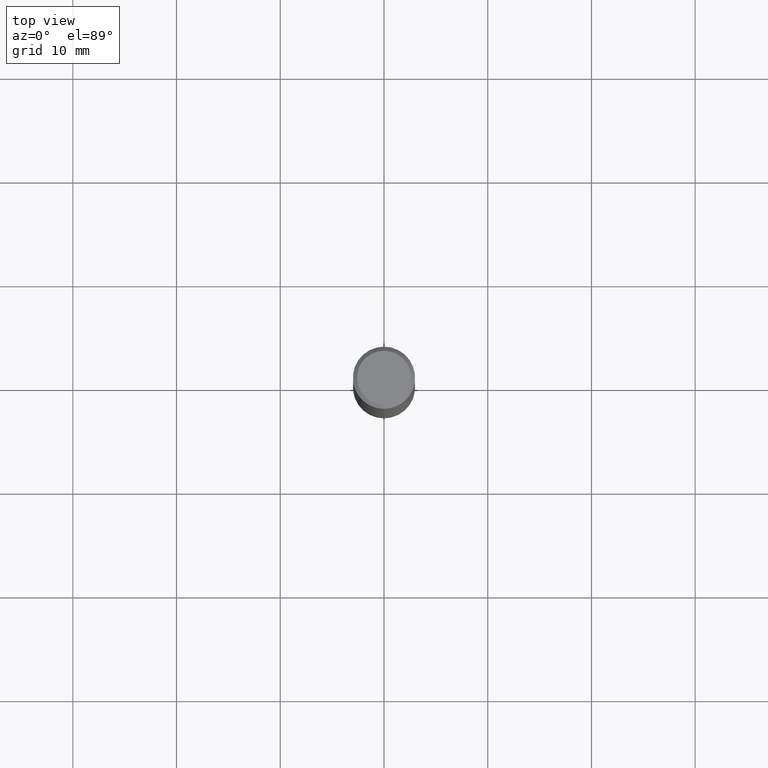
[diagram: clean part render]
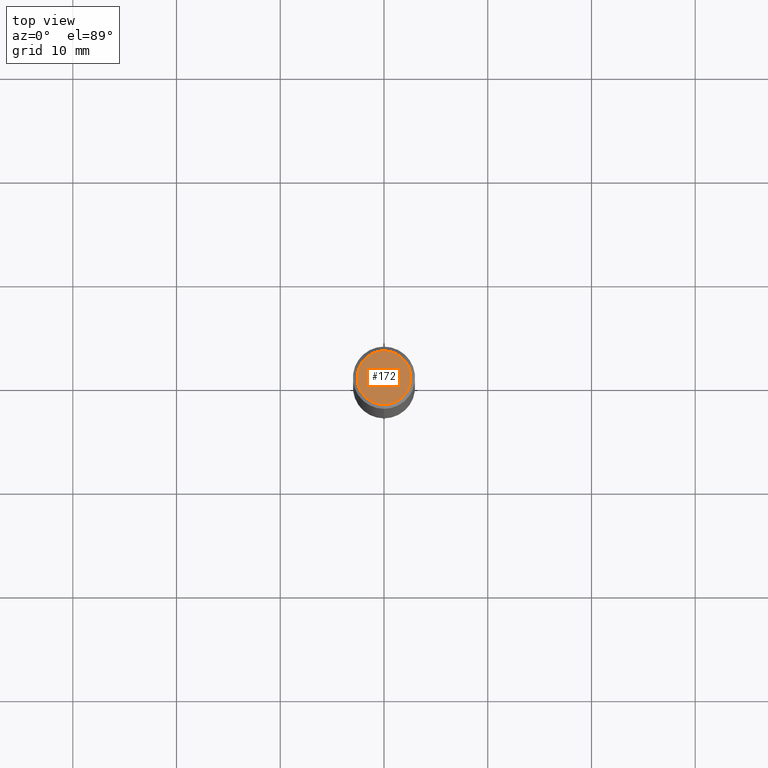
[diagram: same view with one face highlighted and labeled with its STEP entity id]
A machine part, top view. The second image highlights one B-rep face of the part: STEP entity #172.
In plain terms, the highlighted planar face has unit normal (-0, 0, 1).
Its self-contained STEP definition (entity closure, byte-faithful):
#118=VERTEX_POINT('',#259);
#144=EDGE_CURVE('',#118,#152,#289,.T.);
#152=VERTEX_POINT('',#297);
#172=ADVANCED_FACE('',(#319),#320,.T.);
#186=EDGE_CURVE('',#152,#118,#337,.T.);
#259=CARTESIAN_POINT('',(0.0,2.6,0.0));
#289=CIRCLE('',#447,2.6);
#297=CARTESIAN_POINT('',(3.18397651993818E-016,-2.6,0.0));
#319=FACE_OUTER_BOUND('',#486,.T.);
#320=PLANE('',#487);
#337=CIRCLE('',#507,2.6);
#447=AXIS2_PLACEMENT_3D('',#624,#625,#626);
#486=EDGE_LOOP('',(#648,#649));
#487=AXIS2_PLACEMENT_3D('',#650,#651,#652);
#507=AXIS2_PLACEMENT_3D('',#681,#682,#683);
#624=CARTESIAN_POINT('',(0.0,0.0,0.0));
#625=DIRECTION('',(0.0,0.0,-1.0));
#626=DIRECTION('',(0.0,1.0,0.0));
#648=ORIENTED_EDGE('',*,*,#144,.F.);
#649=ORIENTED_EDGE('',*,*,#186,.F.);
#650=CARTESIAN_POINT('',(0.0,1.3,0.0));
#651=DIRECTION('',(-0.0,0.0,1.0));
#652=DIRECTION('',(0.0,-1.0,0.0));
#681=CARTESIAN_POINT('',(0.0,0.0,0.0));
#682=DIRECTION('',(0.0,0.0,-1.0));
#683=DIRECTION('',(0.0,1.0,0.0));